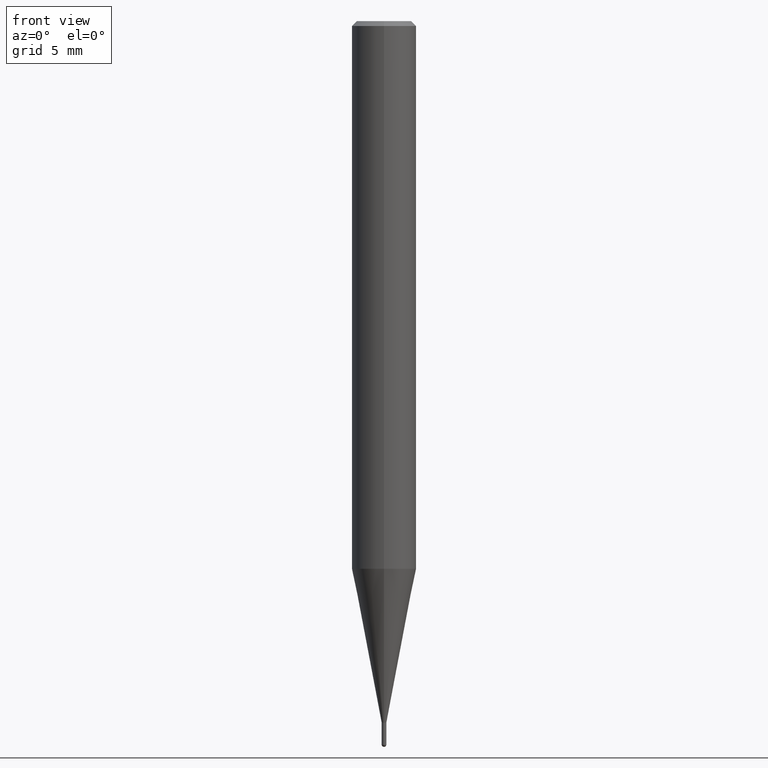
[diagram: clean part render]
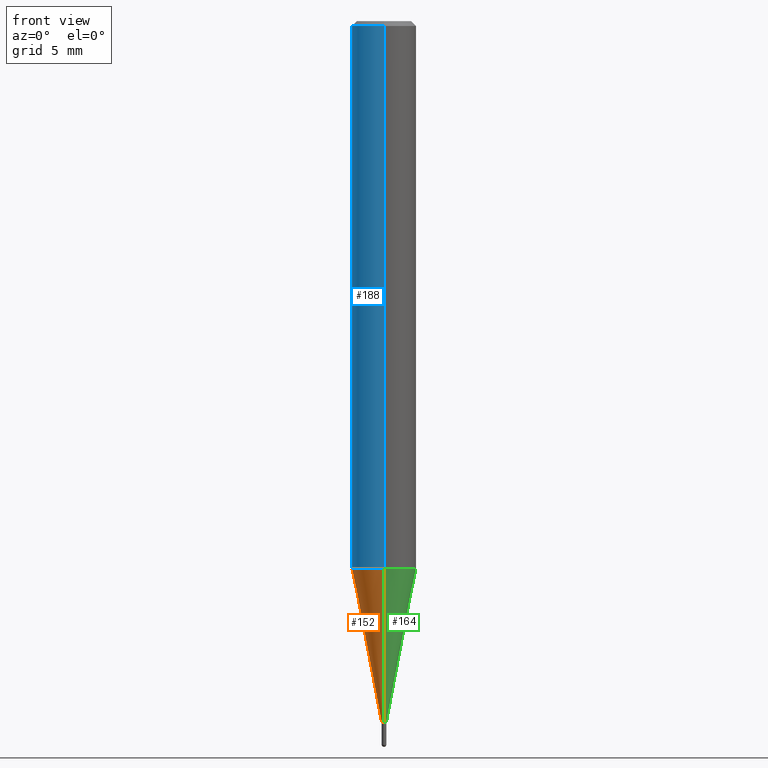
[diagram: same view with three faces highlighted in distinct colors, each labeled with its STEP entity id]
A machine part, front view with three faces highlighted in distinct colors.
Their STEP definitions:

[orange] entity #152 — the highlighted conical surface has half-angle 11 deg.
#100=VERTEX_POINT('',#241);
#104=EDGE_CURVE('',#100,#206,#245,.T.);
#108=EDGE_CURVE('',#162,#206,#249,.T.);
#120=EDGE_CURVE('',#138,#100,#261,.T.);
#134=EDGE_CURVE('',#162,#138,#276,.T.);
#138=VERTEX_POINT('',#281);
#152=ADVANCED_FACE('',(#298),#299,.T.);
#162=VERTEX_POINT('',#311);
#206=VERTEX_POINT('',#362);
#241=CARTESIAN_POINT('',(0.0,1.99995,-33.957));
#245=LINE('',#399,#400);
#249=CIRCLE('',#405,0.14495);
#261=CIRCLE('',#422,1.99995);
#276=LINE('',#441,#442);
#281=CARTESIAN_POINT('',(2.44915147732706E-016,-1.99995,-33.957));
#298=FACE_OUTER_BOUND('',#466,.T.);
#299=CONICAL_SURFACE('',#467,1.07245,0.19198911666217);
#311=CARTESIAN_POINT('',(1.77506690986554E-017,-0.14495,-43.5));
#362=CARTESIAN_POINT('',(0.0,0.14495,-43.5));
#399=CARTESIAN_POINT('',(-1.31332908415681E-016,1.07245,-38.7285));
#400=VECTOR('',#568,1.0);
#405=AXIS2_PLACEMENT_3D('',#569,#570,#571);
#422=AXIS2_PLACEMENT_3D('',#579,#580,#581);
#441=CARTESIAN_POINT('',(1.31332908415681E-016,-1.07245,-38.7285));
#442=VECTOR('',#598,1.0);
#466=EDGE_LOOP('',(#634,#635,#636,#637));
#467=AXIS2_PLACEMENT_3D('',#638,#639,#640);
#568=DIRECTION('',(2.33669392942694E-017,-0.190811841056793,-0.981626630299177));
#569=CARTESIAN_POINT('',(0.0,0.0,-43.5));
#570=DIRECTION('',(0.0,0.0,-1.0));
#571=DIRECTION('',(0.0,1.0,0.0));
#579=CARTESIAN_POINT('',(0.0,0.0,-33.957));
#580=DIRECTION('',(0.0,0.0,-1.0));
#581=DIRECTION('',(0.0,1.0,0.0));
#598=DIRECTION('',(2.33669392942694E-017,-0.190811841056793,0.981626630299177));
#634=ORIENTED_EDGE('',*,*,#104,.T.);
#635=ORIENTED_EDGE('',*,*,#108,.F.);
#636=ORIENTED_EDGE('',*,*,#134,.T.);
#637=ORIENTED_EDGE('',*,*,#120,.T.);
#638=CARTESIAN_POINT('',(0.0,0.0,-38.7285));
#639=DIRECTION('',(-0.0,-0.0,1.0));
#640=DIRECTION('',(0.0,1.0,0.0));

[blue] entity #188 — the highlighted cylindrical surface (edge-blend (fillet) strip) has radius 2 mm, axis along (-0, -0, 1).
#94=VERTEX_POINT('',#235);
#114=EDGE_CURVE('',#142,#130,#255,.T.);
#130=VERTEX_POINT('',#272);
#132=EDGE_CURVE('',#142,#94,#274,.T.);
#142=VERTEX_POINT('',#286);
#146=EDGE_CURVE('',#130,#194,#291,.T.);
#188=ADVANCED_FACE('',(#341),#342,.T.);
#194=VERTEX_POINT('',#348);
#202=EDGE_CURVE('',#194,#94,#358,.T.);
#235=CARTESIAN_POINT('',(0.0,2.0,-33.957));
#255=LINE('',#413,#414);
#272=CARTESIAN_POINT('',(2.44921270764475E-016,-2.0,-0.299999999999997));
#274=CIRCLE('',#438,2.0);
#286=CARTESIAN_POINT('',(2.44921270764475E-016,-2.0,-33.957));
#291=CIRCLE('',#458,2.0);
#341=FACE_OUTER_BOUND('',#521,.T.);
#342=CYLINDRICAL_SURFACE('',#522,2.0);
#348=CARTESIAN_POINT('',(0.0,2.0,-0.299999999999997));
#358=LINE('',#539,#540);
#413=CARTESIAN_POINT('',(2.44921270764475E-016,-2.0,-17.1285));
#414=VECTOR('',#575,1.0);
#438=AXIS2_PLACEMENT_3D('',#595,#596,#597);
#458=AXIS2_PLACEMENT_3D('',#619,#620,#621);
#521=EDGE_LOOP('',(#694,#695,#696,#697));
#522=AXIS2_PLACEMENT_3D('',#698,#699,#700);
#539=CARTESIAN_POINT('',(-2.44921270764475E-016,2.0,-17.1285));
#540=VECTOR('',#719,1.0);
#575=DIRECTION('',(-0.0,-0.0,1.0));
#595=CARTESIAN_POINT('',(0.0,0.0,-33.957));
#596=DIRECTION('',(0.0,0.0,-1.0));
#597=DIRECTION('',(0.0,1.0,0.0));
#619=CARTESIAN_POINT('',(0.0,0.0,-0.299999999999997));
#620=DIRECTION('',(0.0,0.0,-1.0));
#621=DIRECTION('',(0.0,1.0,0.0));
#694=ORIENTED_EDGE('',*,*,#202,.T.);
#695=ORIENTED_EDGE('',*,*,#132,.F.);
#696=ORIENTED_EDGE('',*,*,#114,.T.);
#697=ORIENTED_EDGE('',*,*,#146,.T.);
#698=CARTESIAN_POINT('',(0.0,0.0,-17.1285));
#699=DIRECTION('',(-0.0,-0.0,1.0));
#700=DIRECTION('',(0.0,1.0,0.0));
#719=DIRECTION('',(0.0,0.0,-1.0));

[green] entity #164 — the highlighted conical surface has half-angle 11 deg.
#98=EDGE_CURVE('',#100,#138,#239,.T.);
#100=VERTEX_POINT('',#241);
#104=EDGE_CURVE('',#100,#206,#245,.T.);
#134=EDGE_CURVE('',#162,#138,#276,.T.);
#138=VERTEX_POINT('',#281);
#150=EDGE_CURVE('',#206,#162,#296,.T.);
#162=VERTEX_POINT('',#311);
#164=ADVANCED_FACE('',(#313),#314,.T.);
#206=VERTEX_POINT('',#362);
#239=CIRCLE('',#391,1.99995);
#241=CARTESIAN_POINT('',(0.0,1.99995,-33.957));
#245=LINE('',#399,#400);
#276=LINE('',#441,#442);
#281=CARTESIAN_POINT('',(2.44915147732706E-016,-1.99995,-33.957));
#296=CIRCLE('',#464,0.14495);
#311=CARTESIAN_POINT('',(1.77506690986554E-017,-0.14495,-43.5));
#313=FACE_OUTER_BOUND('',#484,.T.);
#314=CONICAL_SURFACE('',#485,1.07245,0.19198911666217);
#362=CARTESIAN_POINT('',(0.0,0.14495,-43.5));
#391=AXIS2_PLACEMENT_3D('',#562,#563,#564);
#399=CARTESIAN_POINT('',(-1.31332908415681E-016,1.07245,-38.7285));
#400=VECTOR('',#568,1.0);
#441=CARTESIAN_POINT('',(1.31332908415681E-016,-1.07245,-38.7285));
#442=VECTOR('',#598,1.0);
#464=AXIS2_PLACEMENT_3D('',#630,#631,#632);
#484=EDGE_LOOP('',(#658,#659,#660,#661));
#485=AXIS2_PLACEMENT_3D('',#662,#663,#664);
#562=CARTESIAN_POINT('',(0.0,0.0,-33.957));
#563=DIRECTION('',(0.0,0.0,-1.0));
#564=DIRECTION('',(0.0,1.0,0.0));
#568=DIRECTION('',(2.33669392942694E-017,-0.190811841056793,-0.981626630299177));
#598=DIRECTION('',(2.33669392942694E-017,-0.190811841056793,0.981626630299177));
#630=CARTESIAN_POINT('',(0.0,0.0,-43.5));
#631=DIRECTION('',(0.0,0.0,-1.0));
#632=DIRECTION('',(0.0,1.0,0.0));
#658=ORIENTED_EDGE('',*,*,#104,.F.);
#659=ORIENTED_EDGE('',*,*,#98,.T.);
#660=ORIENTED_EDGE('',*,*,#134,.F.);
#661=ORIENTED_EDGE('',*,*,#150,.F.);
#662=CARTESIAN_POINT('',(0.0,0.0,-38.7285));
#663=DIRECTION('',(-0.0,-0.0,1.0));
#664=DIRECTION('',(0.0,1.0,0.0));